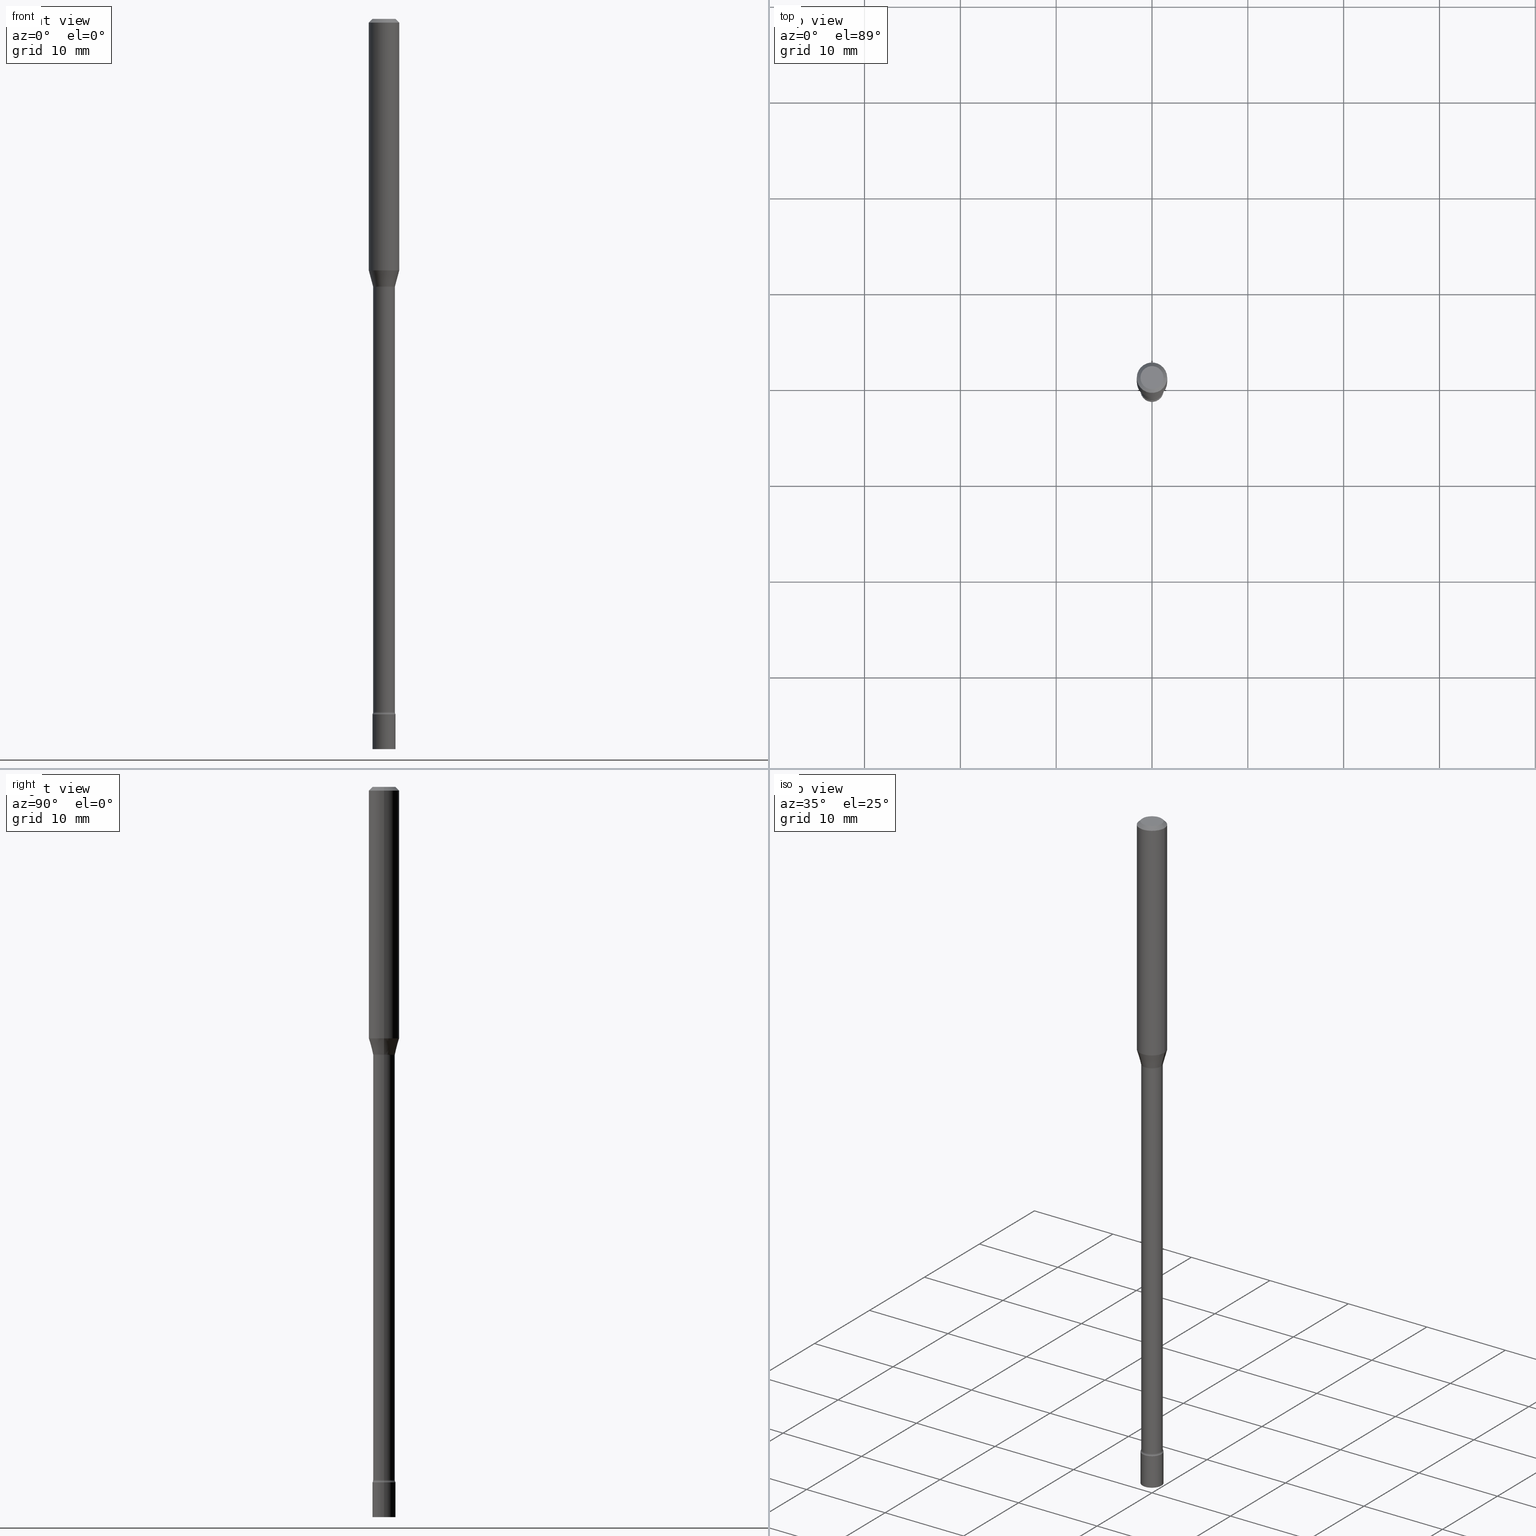
[diagram: canonical four-view strip — front | top / right | iso, engineering-drawing reading convention]
A machine part, canonical four-view strip (front | top / right | iso — engineering-drawing reading convention). The complete STEP part file that produces these views, byte-faithful:
ISO-10303-21;
HEADER;
FILE_DESCRIPTION (( 'STEP AP203' ),
    '1' );
FILE_NAME ('09751.STEP',
    '2024-03-09T01:39:05',
    ( '' ),
    ( '' ),
    'SwSTEP 2.0',
    'SolidWorks 2023',
    '' );
FILE_SCHEMA (( 'CONFIG_CONTROL_DESIGN' ));
ENDSEC;

DATA;
#1 = DIRECTION ( 'NONE',  ( -2.445468806185136597E-29, 3.491481338843145583E-15, 1.000000000000000000 ) ) ;
#2 = ORIENTED_EDGE ( 'NONE', *, *, #406, .F. ) ;
#3 = PRODUCT_DEFINITION_FORMATION_WITH_SPECIFIED_SOURCE ( 'ANY', '', #364, .NOT_KNOWN. ) ;
#4 = LOCAL_TIME ( 20, 39, 5.000000000000000000, #268 ) ;
#5 = ADVANCED_FACE ( 'NONE', ( #420 ), #55, .F. ) ;
#6 = ORIENTED_EDGE ( 'NONE', *, *, #444, .F. ) ;
#7 = ORIENTED_EDGE ( 'NONE', *, *, #436, .F. ) ;
#8 = ADVANCED_FACE ( 'NONE', ( #46 ), #252, .T. ) ;
#9 = FACE_OUTER_BOUND ( 'NONE', #316, .T. ) ;
#10 = CC_DESIGN_APPROVAL ( #170, ( #362 ) ) ;
#11 = EDGE_CURVE ( 'NONE', #317, #144, #256, .T. ) ;
#12 = DIRECTION ( 'NONE',  ( 1.000000000000000000, -6.982962677686262766E-15, 0.000000000000000000 ) ) ;
#13 = CC_DESIGN_APPROVAL ( #213, ( #361 ) ) ;
#14 = ORIENTED_EDGE ( 'NONE', *, *, #421, .F. ) ;
#15 = CARTESIAN_POINT ( 'NONE',  ( 2.694844967945245742E-29, -3.847524406305537825E-15, -1.101974787463811056 ) ) ;
#16 = ORIENTED_EDGE ( 'NONE', *, *, #332, .T. ) ;
#17 = CARTESIAN_POINT ( 'NONE',  ( 0.04516111260566398056, -4.149327842121987234E-15, -1.098092501787273356 ) ) ;
#18 = CYLINDRICAL_SURFACE ( 'NONE', #336, 0.04465000000000009933 ) ;
#19 = CARTESIAN_POINT ( 'NONE',  ( 2.527105629884462696E-29, -3.608037087085655823E-15, -1.033382893084895837 ) ) ;
#20 = AXIS2_PLACEMENT_3D ( 'NONE', #424, #414, #304 ) ;
#21 = ORIENTED_EDGE ( 'NONE', *, *, #356, .F. ) ;
#22 = EDGE_CURVE ( 'NONE', #123, #454, #112, .T. ) ;
#23 = DIRECTION ( 'NONE',  ( 1.000000000000000000, -6.982962677686267499E-15, 4.876681293081646444E-29 ) ) ;
#24 = EDGE_LOOP ( 'NONE', ( #277, #121 ) ) ;
#25 = CC_DESIGN_DATE_AND_TIME_ASSIGNMENT ( #389, #313, ( #362 ) ) ;
#26 = CARTESIAN_POINT ( 'NONE',  ( 6.965192939722619373E-29, -9.944449550522084107E-15, -2.848203551853162985 ) ) ;
#27 = CARTESIAN_POINT ( 'NONE',  ( 0.06250000000000000000, -4.364351673553916694E-16, 3.047610484872459871E-30 ) ) ;
#28 = AXIS2_PLACEMENT_3D ( 'NONE', #339, #507, #52 ) ;
#29 = CARTESIAN_POINT ( 'NONE',  ( 3.668203209277712094E-31, -5.237222008264728876E-17, -0.01500000000000003067 ) ) ;
#30 = DIRECTION ( 'NONE',  ( -1.000000000000000000, 6.982962677686266711E-15, 0.000000000000000000 ) ) ;
#31 = DIRECTION ( 'NONE',  ( 0.000000000000000000, 0.000000000000000000, 1.000000000000000000 ) ) ;
#32 = CARTESIAN_POINT ( 'NONE',  ( 3.316907271900976096E-16, 0.04749999999999999362, -1.803023190589839165E-16 ) ) ;
#33 = PERSON_AND_ORGANIZATION ( #164, #385 ) ;
#34 = AXIS2_PLACEMENT_3D ( 'NONE', #50, #172, #167 ) ;
#35 = DIRECTION ( 'NONE',  ( 1.000000000000000000, -6.982962677686268288E-15, 0.000000000000000000 ) ) ;
#36 = ORIENTED_EDGE ( 'NONE', *, *, #238, .T. ) ;
#37 = PERSON_AND_ORGANIZATION_ROLE ( 'creator' ) ;
#38 = ORIENTED_EDGE ( 'NONE', *, *, #421, .T. ) ;
#39 = AXIS2_PLACEMENT_3D ( 'NONE', #44, #338, #215 ) ;
#40 = CIRCLE ( 'NONE', #188, 0.04749999999999999362 ) ;
#41 = PERSON_AND_ORGANIZATION_ROLE ( 'design_supplier' ) ;
#42 = CC_DESIGN_PERSON_AND_ORGANIZATION_ASSIGNMENT ( #488, #37, ( #3 ) ) ;
#43 = DATE_AND_TIME ( #407, #102 ) ;
#44 = CARTESIAN_POINT ( 'NONE',  ( 6.986704379270935831E-29, -9.975162185074867400E-15, -2.857000000000000206 ) ) ;
#45 = DIRECTION ( 'NONE',  ( 1.000000000000000000, -6.982962677686267499E-15, 4.876176775795935793E-29 ) ) ;
#46 = FACE_OUTER_BOUND ( 'NONE', #97, .T. ) ;
#47 = DIRECTION ( 'NONE',  ( -2.445468806185136877E-29, 3.491481338843145188E-15, 1.000000000000000000 ) ) ;
#48 = VERTEX_POINT ( 'NONE', #462 ) ;
#49 = VECTOR ( 'NONE', #148, 39.37007874015748143 ) ;
#50 = CARTESIAN_POINT ( 'NONE',  ( 6.986704379270935831E-29, -9.975162185074867400E-15, -2.857000000000000206 ) ) ;
#51 = LOCAL_TIME ( 20, 39, 5.000000000000000000, #239 ) ;
#52 = DIRECTION ( 'NONE',  ( 1.000000000000000000, -6.982962677686268288E-15, 4.883557194083113462E-29 ) ) ;
#53 = VERTEX_POINT ( 'NONE', #248 ) ;
#54 = EDGE_CURVE ( 'NONE', #487, #382, #502, .T. ) ;
#55 = PLANE ( 'NONE',  #98 ) ;
#56 = ORIENTED_EDGE ( 'NONE', *, *, #251, .F. ) ;
#57 = DIRECTION ( 'NONE',  ( -1.000000000000000000, 7.105427357600993970E-15, 0.000000000000000000 ) ) ;
#58 = PRODUCT_DEFINITION_SHAPE ( 'NONE', 'NONE',  #362 ) ;
#59 = ORIENTED_EDGE ( 'NONE', *, *, #54, .F. ) ;
#60 = VECTOR ( 'NONE', #514, 39.37007874015748143 ) ;
#61 = CARTESIAN_POINT ( 'NONE',  ( -0.04516111260566398056, -3.338514175270729101E-15, -1.098092501787273356 ) ) ;
#62 = LINE ( 'NONE', #131, #150 ) ;
#63 = CIRCLE ( 'NONE', #441, 0.04749999999999999362 ) ;
#64 = LINE ( 'NONE', #476, #515 ) ;
#65 = EDGE_CURVE ( 'NONE', #321, #216, #311, .T. ) ;
#66 = DIRECTION ( 'NONE',  ( 1.000000000000000000, -6.982962677686249356E-15, 0.000000000000000000 ) ) ;
#67 = APPROVAL_STATUS ( 'not_yet_approved' ) ;
#68 = DIRECTION ( 'NONE',  ( 1.000000000000000000, -6.982962677686265922E-15, 4.876176775795935793E-29 ) ) ;
#69 = CIRCLE ( 'NONE', #288, 0.04465000000000018954 ) ;
#70 = AXIS2_PLACEMENT_3D ( 'NONE', #115, #355, #72 ) ;
#71 = DIRECTION ( 'NONE',  ( -1.000000000000000000, 6.982962677686266711E-15, 0.000000000000000000 ) ) ;
#72 = DIRECTION ( 'NONE',  ( 1.000000000000000000, -6.982962677686266711E-15, 4.876176775795935793E-29 ) ) ;
#73 = DIRECTION ( 'NONE',  ( -2.445468806185136597E-29, 3.491481338843145583E-15, 1.000000000000000000 ) ) ;
#74 = AXIS2_PLACEMENT_3D ( 'NONE', #249, #409, #45 ) ;
#75 = CC_DESIGN_DATE_AND_TIME_ASSIGNMENT ( #43, #278, ( #361 ) ) ;
#76 = APPROVAL_ROLE ( '' ) ;
#77 = EDGE_LOOP ( 'NONE', ( #419, #396 ) ) ;
#78 = ORIENTED_EDGE ( 'NONE', *, *, #332, .F. ) ;
#79 = ORIENTED_EDGE ( 'NONE', *, *, #259, .T. ) ;
#80 = AXIS2_PLACEMENT_3D ( 'NONE', #417, #495, #86 ) ;
#81 = VECTOR ( 'NONE', #404, 39.37007874015748143 ) ;
#82 = CC_DESIGN_SECURITY_CLASSIFICATION ( #361, ( #3 ) ) ;
#83 = DIRECTION ( 'NONE',  ( 1.000000000000000000, -6.982962677686265922E-15, 4.876176775795935793E-29 ) ) ;
#84 = CYLINDRICAL_SURFACE ( 'NONE', #74, 0.04749999999999999362 ) ;
#85 = ADVANCED_FACE ( 'NONE', ( #127 ), #18, .T. ) ;
#86 = DIRECTION ( 'NONE',  ( 1.000000000000000000, -6.982962677686268288E-15, 4.883557194083113462E-29 ) ) ;
#87 = ORIENTED_EDGE ( 'NONE', *, *, #439, .F. ) ;
#88 = DIRECTION ( 'NONE',  ( 1.000000000000000000, -6.982962677686268288E-15, 0.000000000000000000 ) ) ;
#89 = ORIENTED_EDGE ( 'NONE', *, *, #158, .F. ) ;
#90 = CIRCLE ( 'NONE', #325, 0.06250000000000000000 ) ;
#91 = CARTESIAN_POINT ( 'NONE',  ( 2.527105629884462696E-29, -3.608037087085655823E-15, -1.033382893084895837 ) ) ;
#92 = ORIENTED_EDGE ( 'NONE', *, *, #254, .T. ) ;
#93 = EDGE_CURVE ( 'NONE', #53, #317, #479, .T. ) ;
#94 = CYLINDRICAL_SURFACE ( 'NONE', #447, 0.04749999999999999362 ) ;
#95 = CARTESIAN_POINT ( 'NONE',  ( 6.965192939722619373E-29, -9.944449550522084107E-15, -2.848203551853162985 ) ) ;
#96 = CARTESIAN_POINT ( 'NONE',  ( 0.04749999999999999362, -3.316907271900976589E-16, 2.316183968503069081E-30 ) ) ;
#97 = EDGE_LOOP ( 'NONE', ( #333, #253, #483, #7 ) ) ;
#98 = AXIS2_PLACEMENT_3D ( 'NONE', #449, #136, #83 ) ;
#99 = FACE_OUTER_BOUND ( 'NONE', #402, .T. ) ;
#100 = DIRECTION ( 'NONE',  ( -2.445468806185136597E-29, 3.491481338843145583E-15, 1.000000000000000000 ) ) ;
#101 = AXIS2_PLACEMENT_3D ( 'NONE', #295, #418, #220 ) ;
#102 = LOCAL_TIME ( 20, 39, 5.000000000000000000, #276 ) ;
#103 = CARTESIAN_POINT ( 'NONE',  ( 3.316907271901709243E-16, 0.04749999999998952283, -3.000000000000000444 ) ) ;
#104 = DIRECTION ( 'NONE',  ( 1.000000000000000000, -6.982962677686269077E-15, 0.000000000000000000 ) ) ;
#105 = PERSON_AND_ORGANIZATION ( #164, #385 ) ;
#106 = ADVANCED_FACE ( 'NONE', ( #9 ), #147, .F. ) ;
#107 = LINE ( 'NONE', #110, #236 ) ;
#108 =( NAMED_UNIT ( * ) PLANE_ANGLE_UNIT ( ) SI_UNIT ( $, .RADIAN. ) );
#109 = DESIGN_CONTEXT ( 'detailed design', #114, 'design' ) ;
#110 = CARTESIAN_POINT ( 'NONE',  ( -0.06250000000000000000, 3.840629472727443437E-16, -0.01500000000000003067 ) ) ;
#111 = CALENDAR_DATE ( 2024, 8, 3 ) ;
#112 = CIRCLE ( 'NONE', #34, 0.04749999999999999362 ) ;
#113 =( GEOMETRIC_REPRESENTATION_CONTEXT ( 3 ) GLOBAL_UNCERTAINTY_ASSIGNED_CONTEXT ( ( #366 ) ) GLOBAL_UNIT_ASSIGNED_CONTEXT ( ( #473, #108, #194 ) ) REPRESENTATION_CONTEXT ( 'NONE', 'WORKASPACE' ) );
#114 = APPLICATION_CONTEXT ( 'configuration controlled 3d designs of mechanical parts and assemblies' ) ;
#115 = CARTESIAN_POINT ( 'NONE',  ( 0.000000000000000000, 0.000000000000000000, 0.000000000000000000 ) ) ;
#116 = CC_DESIGN_PERSON_AND_ORGANIZATION_ASSIGNMENT ( #509, #435, ( #362 ) ) ;
#117 = EDGE_CURVE ( 'NONE', #216, #48, #440, .T. ) ;
#118 = ORIENTED_EDGE ( 'NONE', *, *, #158, .T. ) ;
#119 = EDGE_LOOP ( 'NONE', ( #174, #163, #171, #261 ) ) ;
#120 = ADVANCED_FACE ( 'NONE', ( #323 ), #94, .T. ) ;
#121 = ORIENTED_EDGE ( 'NONE', *, *, #439, .T. ) ;
#122 = SECURITY_CLASSIFICATION_LEVEL ( 'unclassified' ) ;
#123 = VERTEX_POINT ( 'NONE', #326 ) ;
#124 = FACE_OUTER_BOUND ( 'NONE', #133, .T. ) ;
#125 = CONICAL_SURFACE ( 'NONE', #425, 0.06250000000000000000, 0.7853981633974483900 ) ;
#126 = AXIS2_PLACEMENT_3D ( 'NONE', #506, #227, #145 ) ;
#127 = FACE_OUTER_BOUND ( 'NONE', #283, .T. ) ;
#128 = LINE ( 'NONE', #96, #289 ) ;
#129 = ORIENTED_EDGE ( 'NONE', *, *, #189, .T. ) ;
#130 = DIRECTION ( 'NONE',  ( -2.445468806185136597E-29, 3.491481338843145583E-15, 1.000000000000000000 ) ) ;
#131 = CARTESIAN_POINT ( 'NONE',  ( 0.04465000000000009933, -3.117892835586925182E-16, 2.177212930392890079E-30 ) ) ;
#132 = PRODUCT_RELATED_PRODUCT_CATEGORY ( 'detail', '', ( #364 ) ) ;
#133 = EDGE_LOOP ( 'NONE', ( #242, #520, #250, #197 ) ) ;
#134 = EDGE_CURVE ( 'NONE', #214, #321, #510, .T. ) ;
#135 = DIMENSIONAL_EXPONENTS ( 1.000000000000000000, 0.000000000000000000, 0.000000000000000000, 0.000000000000000000, 0.000000000000000000, 0.000000000000000000, 0.000000000000000000 ) ;
#136 = DIRECTION ( 'NONE',  ( -2.438088387897960049E-29, 3.491481338843145188E-15, 1.000000000000000000 ) ) ;
#137 = DIRECTION ( 'NONE',  ( 1.000000000000000000, -6.982962677686261977E-15, 0.000000000000000000 ) ) ;
#138 = ORIENTED_EDGE ( 'NONE', *, *, #134, .T. ) ;
#139 = AXIS2_PLACEMENT_3D ( 'NONE', #19, #292, #466 ) ;
#140 = DIRECTION ( 'NONE',  ( -2.445468806185136877E-29, 3.491481338843145188E-15, 1.000000000000000000 ) ) ;
#141 = FACE_OUTER_BOUND ( 'NONE', #246, .T. ) ;
#142 = ORIENTED_EDGE ( 'NONE', *, *, #356, .T. ) ;
#143 = CARTESIAN_POINT ( 'NONE',  ( -0.04465000000000000219, -6.578729646896923703E-15, -1.101974787463811056 ) ) ;
#144 = VERTEX_POINT ( 'NONE', #211 ) ;
#145 = DIRECTION ( 'NONE',  ( 1.000000000000000000, -6.982962677686261189E-15, 4.883557194083110659E-29 ) ) ;
#146 = DIRECTION ( 'NONE',  ( -2.445468806185136597E-29, 3.491481338843145583E-15, 1.000000000000000000 ) ) ;
#147 = TOROIDAL_SURFACE ( 'NONE', #80, 0.05965000000000000163, 0.01499999999999999771 ) ;
#148 = DIRECTION ( 'NONE',  ( -0.2588190451025211281, 5.211531920934548675E-15, 0.9659258262890682012 ) ) ;
#149 = DIRECTION ( 'NONE',  ( 1.000000000000000000, -6.982962677686261189E-15, 4.883557194083110659E-29 ) ) ;
#150 = VECTOR ( 'NONE', #47, 39.37007874015748143 ) ;
#151 = FACE_OUTER_BOUND ( 'NONE', #286, .T. ) ;
#152 = CARTESIAN_POINT ( 'NONE',  ( 2.685350959426573559E-29, -3.833969478313848817E-15, -1.098092501787273356 ) ) ;
#153 = DIRECTION ( 'NONE',  ( -1.000000000000000000, 7.105427357601001859E-15, 0.000000000000000000 ) ) ;
#154 = PERSON_AND_ORGANIZATION ( #164, #385 ) ;
#155 = DIRECTION ( 'NONE',  ( 1.000000000000000000, 0.000000000000000000, 0.000000000000000000 ) ) ;
#156 = VECTOR ( 'NONE', #176, 39.37007874015748143 ) ;
#157 = AXIS2_PLACEMENT_3D ( 'NONE', #264, #512, #423 ) ;
#158 = EDGE_CURVE ( 'NONE', #214, #53, #373, .T. ) ;
#159 = DIRECTION ( 'NONE',  ( -2.445468806185136597E-29, 3.491481338843145583E-15, 1.000000000000000000 ) ) ;
#160 = VERTEX_POINT ( 'NONE', #334 ) ;
#161 = CARTESIAN_POINT ( 'NONE',  ( 3.668203209277712094E-31, -5.237222008264728876E-17, -0.01500000000000003067 ) ) ;
#162 = AXIS2_PLACEMENT_3D ( 'NONE', #152, #187, #513 ) ;
#163 = ORIENTED_EDGE ( 'NONE', *, *, #444, .T. ) ;
#164 = PERSON ( 'UNSPECIFIED', 'UNSPECIFIED', 'UNSPECIFIED', ('UNSPECIFIED'), ('UNSPECIFIED'), ('UNSPECIFIED') ) ;
#165 = VERTEX_POINT ( 'NONE', #501 ) ;
#166 = DIRECTION ( 'NONE',  ( 2.438088387897960049E-29, -3.491481338843145188E-15, -1.000000000000000000 ) ) ;
#167 = DIRECTION ( 'NONE',  ( 1.000000000000000000, -6.982962677686261977E-15, 0.000000000000000000 ) ) ;
#168 = AXIS2_PLACEMENT_3D ( 'NONE', #95, #269, #66 ) ;
#169 = ORIENTED_EDGE ( 'NONE', *, *, #474, .T. ) ;
#170 = APPROVAL ( #518, 'UNSPECIFIED' ) ;
#171 = ORIENTED_EDGE ( 'NONE', *, *, #315, .T. ) ;
#172 = DIRECTION ( 'NONE',  ( -2.445468806185136597E-29, 3.491481338843145583E-15, 1.000000000000000000 ) ) ;
#173 = PLANE ( 'NONE',  #217 ) ;
#174 = ORIENTED_EDGE ( 'NONE', *, *, #11, .F. ) ;
#175 = DATE_AND_TIME ( #398, #51 ) ;
#176 = DIRECTION ( 'NONE',  ( 0.2588190451025211281, 1.565188264969623940E-15, 0.9659258262890682012 ) ) ;
#177 = CARTESIAN_POINT ( 'NONE',  ( 7.336406418555409790E-29, -1.047444401652943635E-14, -3.000000000000000444 ) ) ;
#178 = EDGE_CURVE ( 'NONE', #160, #123, #324, .T. ) ;
#179 = ORIENTED_EDGE ( 'NONE', *, *, #117, .T. ) ;
#180 = DIRECTION ( 'NONE',  ( -2.445468806185136877E-29, 3.491481338843145188E-15, 1.000000000000000000 ) ) ;
#181 = LINE ( 'NONE', #192, #49 ) ;
#182 = ORIENTED_EDGE ( 'NONE', *, *, #474, .F. ) ;
#183 = EDGE_CURVE ( 'NONE', #281, #208, #64, .T. ) ;
#184 = DIRECTION ( 'NONE',  ( 2.445468806185136597E-29, -3.491481338843145583E-15, -1.000000000000000000 ) ) ;
#185 = APPROVAL_ROLE ( '' ) ;
#186 = CARTESIAN_POINT ( 'NONE',  ( -0.04465000000000009933, 3.172573315168854388E-16, -2.196304517798820251E-30 ) ) ;
#187 = DIRECTION ( 'NONE',  ( -2.445468806185136597E-29, 3.491481338843145583E-15, 1.000000000000000000 ) ) ;
#188 = AXIS2_PLACEMENT_3D ( 'NONE', #209, #371, #137 ) ;
#189 = EDGE_CURVE ( 'NONE', #160, #340, #69, .T. ) ;
#190 = DIRECTION ( 'NONE',  ( -0.7071067811865475727, 2.468850131082257455E-15, -0.7071067811865474617 ) ) ;
#191 = CARTESIAN_POINT ( 'NONE',  ( 2.685350959426573559E-29, -3.833969478313848817E-15, -1.098092501787273356 ) ) ;
#192 = CARTESIAN_POINT ( 'NONE',  ( -0.04516111260566398056, -3.513080473305864602E-15, -1.098092501787273356 ) ) ;
#193 = CARTESIAN_POINT ( 'NONE',  ( 6.965192939722619373E-29, -9.944449550522084107E-15, -2.848203551853162985 ) ) ;
#194 =( NAMED_UNIT ( * ) SI_UNIT ( $, .STERADIAN. ) SOLID_ANGLE_UNIT ( ) );
#195 = CIRCLE ( 'NONE', #490, 0.04749999999999999362 ) ;
#196 = CONICAL_SURFACE ( 'NONE', #162, 0.04516111260566398056, 0.2617993877991497964 ) ;
#197 = ORIENTED_EDGE ( 'NONE', *, *, #315, .F. ) ;
#198 = APPROVAL_STATUS ( 'not_yet_approved' ) ;
#199 = CLOSED_SHELL ( 'NONE', ( #120, #271, #397, #369 ) ) ;
#200 = AXIS2_PLACEMENT_3D ( 'NONE', #29, #434, #71 ) ;
#201 = EDGE_LOOP ( 'NONE', ( #293, #500, #118, #6 ) ) ;
#202 = ORIENTED_EDGE ( 'NONE', *, *, #134, .F. ) ;
#203 = EDGE_CURVE ( 'NONE', #160, #216, #307, .T. ) ;
#204 = DIRECTION ( 'NONE',  ( 1.000000000000000000, -6.982962677686266711E-15, 4.876176775795935793E-29 ) ) ;
#205 = CARTESIAN_POINT ( 'NONE',  ( 0.04749999999999999362, -1.080613474371953465E-14, -3.000000000000000444 ) ) ;
#206 = AXIS2_PLACEMENT_3D ( 'NONE', #375, #260, #57 ) ;
#207 = EDGE_LOOP ( 'NONE', ( #329, #16, #59, #2 ) ) ;
#208 = VERTEX_POINT ( 'NONE', #231 ) ;
#209 = CARTESIAN_POINT ( 'NONE',  ( 6.986704379270935831E-29, -9.975162185074867400E-15, -2.857000000000000206 ) ) ;
#210 = ORIENTED_EDGE ( 'NONE', *, *, #346, .T. ) ;
#211 = CARTESIAN_POINT ( 'NONE',  ( -0.06250000000000000000, -1.386115443734088835E-15, -0.01500000000000003067 ) ) ;
#212 = FACE_OUTER_BOUND ( 'NONE', #494, .T. ) ;
#213 = APPROVAL ( #198, 'UNSPECIFIED' ) ;
#214 = VERTEX_POINT ( 'NONE', #383 ) ;
#215 = DIRECTION ( 'NONE',  ( 1.000000000000000000, -6.982962677686261977E-15, 0.000000000000000000 ) ) ;
#216 = VERTEX_POINT ( 'NONE', #143 ) ;
#217 = AXIS2_PLACEMENT_3D ( 'NONE', #103, #166, #320 ) ;
#218 = APPLICATION_CONTEXT ( 'configuration controlled 3d designs of mechanical parts and assemblies' ) ;
#219 = APPROVAL_PERSON_ORGANIZATION ( #442, #213, #76 ) ;
#220 = DIRECTION ( 'NONE',  ( 1.000000000000000000, -6.982962677686270655E-15, 0.000000000000000000 ) ) ;
#221 = ORIENTED_EDGE ( 'NONE', *, *, #22, .F. ) ;
#222 = CARTESIAN_POINT ( 'NONE',  ( -0.05965000000000016817, -9.520610808641182904E-15, -2.848203551853162985 ) ) ;
#223 = CC_DESIGN_PERSON_AND_ORGANIZATION_ASSIGNMENT ( #154, #235, ( #364 ) ) ;
#224 = FACE_OUTER_BOUND ( 'NONE', #201, .T. ) ;
#225 = APPLICATION_PROTOCOL_DEFINITION ( 'international standard', 'config_control_design', 1994, #114 ) ;
#226 = CLOSED_SHELL ( 'NONE', ( #410, #8, #492, #327, #390, #496, #285, #519, #233, #341, #5, #284, #85, #106 ) ) ;
#227 = DIRECTION ( 'NONE',  ( -2.445468806185136597E-29, 3.491481338843145583E-15, 1.000000000000000000 ) ) ;
#228 = MECHANICAL_CONTEXT ( 'NONE', #218, 'mechanical' ) ;
#229 = LOCAL_TIME ( 20, 39, 5.000000000000000000, #345 ) ;
#230 = APPROVAL_PERSON_ORGANIZATION ( #105, #280, #482 ) ;
#231 = CARTESIAN_POINT ( 'NONE',  ( 0.06250000000000000000, -4.888073874380389458E-16, -0.01500000000000003067 ) ) ;
#232 = CARTESIAN_POINT ( 'NONE',  ( 0.000000000000000000, 0.000000000000000000, 0.000000000000000000 ) ) ;
#233 = ADVANCED_FACE ( 'NONE', ( #388 ), #125, .T. ) ;
#234 = FACE_OUTER_BOUND ( 'NONE', #24, .T. ) ;
#235 = PERSON_AND_ORGANIZATION_ROLE ( 'design_owner' ) ;
#236 = VECTOR ( 'NONE', #190, 39.37007874015748143 ) ;
#237 = EDGE_LOOP ( 'NONE', ( #422, #457, #179, #182 ) ) ;
#238 = EDGE_CURVE ( 'NONE', #144, #208, #353, .T. ) ;
#239 = COORDINATED_UNIVERSAL_TIME_OFFSET ( 5, 0, .BEHIND. ) ;
#240 = ORIENTED_EDGE ( 'NONE', *, *, #178, .T. ) ;
#241 = CYLINDRICAL_SURFACE ( 'NONE', #360, 0.06250000000000000000 ) ;
#242 = ORIENTED_EDGE ( 'NONE', *, *, #93, .T. ) ;
#243 = ORIENTED_EDGE ( 'NONE', *, *, #183, .F. ) ;
#244 = CONICAL_SURFACE ( 'NONE', #200, 0.06250000000000000000, 0.7853981633974483900 ) ;
#245 = CIRCLE ( 'NONE', #168, 0.04465000000000018954 ) ;
#246 = EDGE_LOOP ( 'NONE', ( #138, #79, #379, #89 ) ) ;
#247 = PERSON_AND_ORGANIZATION_ROLE ( 'classification_officer' ) ;
#248 = CARTESIAN_POINT ( 'NONE',  ( 0.06250000000000000000, -4.044472254441047492E-15, -1.033382893084895837 ) ) ;
#249 = CARTESIAN_POINT ( 'NONE',  ( 0.000000000000000000, 0.000000000000000000, 0.000000000000000000 ) ) ;
#250 = ORIENTED_EDGE ( 'NONE', *, *, #394, .F. ) ;
#251 = EDGE_CURVE ( 'NONE', #165, #281, #195, .T. ) ;
#252 = CYLINDRICAL_SURFACE ( 'NONE', #297, 0.04465000000000009933 ) ;
#253 = ORIENTED_EDGE ( 'NONE', *, *, #203, .T. ) ;
#254 = EDGE_CURVE ( 'NONE', #165, #144, #107, .T. ) ;
#255 = SHAPE_DEFINITION_REPRESENTATION ( #58, #393 ) ;
#256 = LINE ( 'NONE', #413, #367 ) ;
#257 = CARTESIAN_POINT ( 'NONE',  ( 0.05965000000000016817, -1.036098327424607142E-14, -2.848203551853162985 ) ) ;
#258 = TOROIDAL_SURFACE ( 'NONE', #28, 0.05965000000000000163, 0.01499999999999999771 ) ;
#259 = EDGE_CURVE ( 'NONE', #321, #317, #181, .T. ) ;
#260 = DIRECTION ( 'NONE',  ( 7.105427357601001859E-15, 1.000000000000000000, -3.491481338843145583E-15 ) ) ;
#261 = ORIENTED_EDGE ( 'NONE', *, *, #238, .F. ) ;
#262 = APPROVAL_DATE_TIME ( #175, #213 ) ;
#263 = DIRECTION ( 'NONE',  ( -2.445468806185136597E-29, 3.491481338843145583E-15, 1.000000000000000000 ) ) ;
#264 = CARTESIAN_POINT ( 'NONE',  ( 7.336406418555409790E-29, -1.047444401652943635E-14, -3.000000000000000444 ) ) ;
#265 = CARTESIAN_POINT ( 'NONE',  ( 6.986704379270935831E-29, -9.975162185074867400E-15, -2.857000000000000206 ) ) ;
#266 = AXIS2_PLACEMENT_3D ( 'NONE', #257, #331, #376 ) ;
#267 = FACE_OUTER_BOUND ( 'NONE', #77, .T. ) ;
#268 = COORDINATED_UNIVERSAL_TIME_OFFSET ( 5, 0, .BEHIND. ) ;
#269 = DIRECTION ( 'NONE',  ( -2.445468806185136597E-29, 3.491481338843145583E-15, 1.000000000000000000 ) ) ;
#270 = CALENDAR_DATE ( 2024, 8, 3 ) ;
#271 = ADVANCED_FACE ( 'NONE', ( #267 ), #380, .T. ) ;
#272 = CARTESIAN_POINT ( 'NONE',  ( 6.986704379270935831E-29, -9.975162185074867400E-15, -2.857000000000000206 ) ) ;
#273 = CARTESIAN_POINT ( 'NONE',  ( -0.04749999999999999362, -9.887295301316104383E-15, -3.000000000000000444 ) ) ;
#274 = CIRCLE ( 'NONE', #157, 0.04749999999999999362 ) ;
#275 = APPLICATION_PROTOCOL_DEFINITION ( 'international standard', 'config_control_design', 1994, #218 ) ;
#276 = COORDINATED_UNIVERSAL_TIME_OFFSET ( 5, 0, .BEHIND. ) ;
#277 = ORIENTED_EDGE ( 'NONE', *, *, #251, .T. ) ;
#278 = DATE_TIME_ROLE ( 'classification_date' ) ;
#279 = AXIS2_PLACEMENT_3D ( 'NONE', #222, #342, #153 ) ;
#280 = APPROVAL ( #67, 'UNSPECIFIED' ) ;
#281 = VERTEX_POINT ( 'NONE', #469 ) ;
#282 = PERSON_AND_ORGANIZATION ( #164, #385 ) ;
#283 = EDGE_LOOP ( 'NONE', ( #368, #129, #363, #461 ) ) ;
#284 = ADVANCED_FACE ( 'NONE', ( #99 ), #415, .F. ) ;
#285 = ADVANCED_FACE ( 'NONE', ( #224 ), #433, .T. ) ;
#286 = EDGE_LOOP ( 'NONE', ( #87, #443, #456, #497 ) ) ;
#287 = CARTESIAN_POINT ( 'NONE',  ( 0.000000000000000000, 0.000000000000000000, 0.000000000000000000 ) ) ;
#288 = AXIS2_PLACEMENT_3D ( 'NONE', #26, #428, #429 ) ;
#289 = VECTOR ( 'NONE', #180, 39.37007874015748143 ) ;
#290 = DIRECTION ( 'NONE',  ( 1.000000000000000000, -6.982962677686267499E-15, 4.876176775795935793E-29 ) ) ;
#291 = DIRECTION ( 'NONE',  ( 1.000000000000000000, -6.982962677686266711E-15, 4.876176775795935793E-29 ) ) ;
#292 = DIRECTION ( 'NONE',  ( -2.445468806185136597E-29, 3.491481338843145583E-15, 1.000000000000000000 ) ) ;
#293 = ORIENTED_EDGE ( 'NONE', *, *, #259, .F. ) ;
#294 = DIRECTION ( 'NONE',  ( 1.000000000000000000, -6.982962677686269077E-15, 0.000000000000000000 ) ) ;
#295 = CARTESIAN_POINT ( 'NONE',  ( 0.05965000000000000163, -4.264058130029524354E-15, -1.101974787463811278 ) ) ;
#296 = MANIFOLD_SOLID_BREP ( 'Body-Move/Copy2[2]', #226 ) ;
#297 = AXIS2_PLACEMENT_3D ( 'NONE', #458, #263, #204 ) ;
#298 = ORIENTED_EDGE ( 'NONE', *, *, #65, .F. ) ;
#299 = CIRCLE ( 'NONE', #448, 0.04749999999999999362 ) ;
#300 = EDGE_CURVE ( 'NONE', #340, #160, #245, .T. ) ;
#301 = DIRECTION ( 'NONE',  ( -2.445468806185136597E-29, 3.491481338843145583E-15, 1.000000000000000000 ) ) ;
#302 = ORIENTED_EDGE ( 'NONE', *, *, #455, .T. ) ;
#303 = CARTESIAN_POINT ( 'NONE',  ( 3.668203209277712094E-31, -5.237222008264728876E-17, -0.01500000000000003067 ) ) ;
#304 = DIRECTION ( 'NONE',  ( 1.000000000000000000, -6.982962677686267499E-15, 4.876681293081646444E-29 ) ) ;
#305 = EDGE_CURVE ( 'NONE', #463, #319, #274, .T. ) ;
#306 = CIRCLE ( 'NONE', #266, 0.01499999999999997689 ) ;
#307 = LINE ( 'NONE', #186, #60 ) ;
#308 = CARTESIAN_POINT ( 'NONE',  ( 3.668203209277712094E-31, -5.237222008264728876E-17, -0.01500000000000003067 ) ) ;
#309 =( LENGTH_UNIT ( ) NAMED_UNIT ( * ) SI_UNIT ( $, .METRE. ) );
#310 = DIRECTION ( 'NONE',  ( -2.445468806185136597E-29, 3.491481338843145583E-15, 1.000000000000000000 ) ) ;
#311 = CIRCLE ( 'NONE', #206, 0.01499999999999999424 ) ;
#312 = DATE_AND_TIME ( #111, #460 ) ;
#313 = DATE_TIME_ROLE ( 'creation_date' ) ;
#314 = PERSON_AND_ORGANIZATION ( #164, #385 ) ;
#315 = EDGE_CURVE ( 'NONE', #53, #208, #384, .T. ) ;
#316 = EDGE_LOOP ( 'NONE', ( #298, #202, #169, #210 ) ) ;
#317 = VERTEX_POINT ( 'NONE', #349 ) ;
#318 = DIRECTION ( 'NONE',  ( 1.000000000000000000, -6.982962677686266711E-15, 0.000000000000000000 ) ) ;
#319 = VERTEX_POINT ( 'NONE', #273 ) ;
#320 = DIRECTION ( 'NONE',  ( -1.000000000000000000, 6.982962677686265922E-15, -4.876176775795935793E-29 ) ) ;
#321 = VERTEX_POINT ( 'NONE', #61 ) ;
#322 = APPROVAL_DATE_TIME ( #430, #280 ) ;
#323 = FACE_OUTER_BOUND ( 'NONE', #207, .T. ) ;
#324 = CIRCLE ( 'NONE', #279, 0.01499999999999997689 ) ;
#325 = AXIS2_PLACEMENT_3D ( 'NONE', #161, #1, #318 ) ;
#326 = CARTESIAN_POINT ( 'NONE',  ( -0.04749999999999997280, -9.637654385588820695E-15, -2.857000000000000206 ) ) ;
#327 = ADVANCED_FACE ( 'NONE', ( #151 ), #244, .T. ) ;
#328 = CARTESIAN_POINT ( 'NONE',  ( 2.694844967945245742E-29, -3.847524406305537825E-15, -1.101974787463811056 ) ) ;
#329 = ORIENTED_EDGE ( 'NONE', *, *, #305, .T. ) ;
#330 = CARTESIAN_POINT ( 'NONE',  ( 0.000000000000000000, 0.000000000000000000, 0.000000000000000000 ) ) ;
#331 = DIRECTION ( 'NONE',  ( -6.982962677686266711E-15, -1.000000000000000000, 3.491481338843145583E-15 ) ) ;
#332 = EDGE_CURVE ( 'NONE', #319, #382, #504, .T. ) ;
#333 = ORIENTED_EDGE ( 'NONE', *, *, #300, .T. ) ;
#334 = CARTESIAN_POINT ( 'NONE',  ( -0.04465000000000018954, -9.632423302297009755E-15, -2.848203551853162985 ) ) ;
#335 = DIRECTION ( 'NONE',  ( 1.000000000000000000, -6.982962677686261977E-15, 0.000000000000000000 ) ) ;
#336 = AXIS2_PLACEMENT_3D ( 'NONE', #370, #365, #291 ) ;
#337 = CIRCLE ( 'NONE', #491, 0.04516111260566398056 ) ;
#338 = DIRECTION ( 'NONE',  ( -2.445468806185136597E-29, 3.491481338843145583E-15, 1.000000000000000000 ) ) ;
#339 = CARTESIAN_POINT ( 'NONE',  ( 2.694844967945245742E-29, -3.847524406305538614E-15, -1.101974787463811278 ) ) ;
#340 = VERTEX_POINT ( 'NONE', #437 ) ;
#341 = ADVANCED_FACE ( 'NONE', ( #234 ), #391, .F. ) ;
#342 = DIRECTION ( 'NONE',  ( 7.105427357601001859E-15, 1.000000000000000000, -3.491481338843145583E-15 ) ) ;
#343 = DIRECTION ( 'NONE',  ( 1.000000000000000000, -6.982962677686261977E-15, 0.000000000000000000 ) ) ;
#344 = DIRECTION ( 'NONE',  ( -2.445468806185136597E-29, 3.491481338843145583E-15, 1.000000000000000000 ) ) ;
#345 = COORDINATED_UNIVERSAL_TIME_OFFSET ( 5, 0, .BEHIND. ) ;
#346 = EDGE_CURVE ( 'NONE', #48, #216, #378, .T. ) ;
#347 = AXIS2_PLACEMENT_3D ( 'NONE', #272, #432, #68 ) ;
#348 = AXIS2_PLACEMENT_3D ( 'NONE', #232, #31, #155 ) ;
#349 = CARTESIAN_POINT ( 'NONE',  ( -0.06250000000000000000, -3.163947877235593601E-15, -1.033382893084895837 ) ) ;
#350 = LENGTH_MEASURE_WITH_UNIT ( LENGTH_MEASURE( 0.02539999999999999897 ), #309 );
#351 = DIRECTION ( 'NONE',  ( -2.445468806185136877E-29, 3.491481338843145188E-15, 1.000000000000000000 ) ) ;
#352 = CYLINDRICAL_SURFACE ( 'NONE', #70, 0.06250000000000000000 ) ;
#353 = CIRCLE ( 'NONE', #467, 0.06250000000000000000 ) ;
#354 = CIRCLE ( 'NONE', #101, 0.01499999999999999424 ) ;
#355 = DIRECTION ( 'NONE',  ( -2.445468806185136597E-29, 3.491481338843145583E-15, 1.000000000000000000 ) ) ;
#356 = EDGE_CURVE ( 'NONE', #319, #463, #299, .T. ) ;
#357 = FACE_OUTER_BOUND ( 'NONE', #427, .T. ) ;
#358 = ORIENTED_EDGE ( 'NONE', *, *, #406, .T. ) ;
#359 = DIRECTION ( 'NONE',  ( 1.000000000000000000, -6.982962677686266711E-15, 4.876176775795935793E-29 ) ) ;
#360 = AXIS2_PLACEMENT_3D ( 'NONE', #287, #400, #359 ) ;
#361 = SECURITY_CLASSIFICATION ( '', '', #122 ) ;
#362 = PRODUCT_DEFINITION ( 'UNKNOWN', '', #3, #109 ) ;
#363 = ORIENTED_EDGE ( 'NONE', *, *, #436, .T. ) ;
#364 = PRODUCT ( '09751', '09751', '', ( #228 ) ) ;
#365 = DIRECTION ( 'NONE',  ( -2.445468806185136597E-29, 3.491481338843145583E-15, 1.000000000000000000 ) ) ;
#366 = UNCERTAINTY_MEASURE_WITH_UNIT (LENGTH_MEASURE( 1.000000000000000082E-05 ), #473, 'distance_accuracy_value', 'NONE');
#367 = VECTOR ( 'NONE', #140, 39.37007874015748143 ) ;
#368 = ORIENTED_EDGE ( 'NONE', *, *, #203, .F. ) ;
#369 = ADVANCED_FACE ( 'NONE', ( #357 ), #173, .T. ) ;
#370 = CARTESIAN_POINT ( 'NONE',  ( 0.000000000000000000, 0.000000000000000000, 0.000000000000000000 ) ) ;
#371 = DIRECTION ( 'NONE',  ( -2.445468806185136597E-29, 3.491481338843145583E-15, 1.000000000000000000 ) ) ;
#372 = EDGE_LOOP ( 'NONE', ( #78, #142, #358, #505 ) ) ;
#373 = LINE ( 'NONE', #17, #156 ) ;
#374 = EDGE_LOOP ( 'NONE', ( #408, #221 ) ) ;
#375 = CARTESIAN_POINT ( 'NONE',  ( -0.05965000000000000163, -3.423685664424638595E-15, -1.101974787463811278 ) ) ;
#376 = DIRECTION ( 'NONE',  ( 1.000000000000000000, -6.982962677686279332E-15, 0.000000000000000000 ) ) ;
#377 = AXIS2_PLACEMENT_3D ( 'NONE', #498, #130, #294 ) ;
#378 = CIRCLE ( 'NONE', #511, 0.04465000000000000219 ) ;
#379 = ORIENTED_EDGE ( 'NONE', *, *, #93, .F. ) ;
#380 = PLANE ( 'NONE',  #347 ) ;
#381 = CARTESIAN_POINT ( 'NONE',  ( 0.04749999999999997280, -1.030685291226496570E-14, -2.857000000000000206 ) ) ;
#382 = VERTEX_POINT ( 'NONE', #489 ) ;
#383 = CARTESIAN_POINT ( 'NONE',  ( 0.04516111260566398056, -4.149327842121987234E-15, -1.098092501787273356 ) ) ;
#384 = LINE ( 'NONE', #27, #486 ) ;
#385 = ORGANIZATION ( 'UNSPECIFIED', 'UNSPECIFIED', '' ) ;
#386 = CARTESIAN_POINT ( 'NONE',  ( 2.685350959426573559E-29, -3.833969478313848817E-15, -1.098092501787273356 ) ) ;
#387 = DIRECTION ( 'NONE',  ( 1.000000000000000000, -6.982962677686269077E-15, 0.000000000000000000 ) ) ;
#388 = FACE_OUTER_BOUND ( 'NONE', #412, .T. ) ;
#389 = DATE_AND_TIME ( #470, #229 ) ;
#390 = ADVANCED_FACE ( 'NONE', ( #124 ), #241, .T. ) ;
#391 = PLANE ( 'NONE',  #405 ) ;
#392 = FACE_OUTER_BOUND ( 'NONE', #119, .T. ) ;
#393 = ADVANCED_BREP_SHAPE_REPRESENTATION ( '09751', ( #475, #296, #348 ), #113 ) ;
#394 = EDGE_CURVE ( 'NONE', #208, #144, #90, .T. ) ;
#395 = CIRCLE ( 'NONE', #20, 0.04749999999999999362 ) ;
#396 = ORIENTED_EDGE ( 'NONE', *, *, #471, .T. ) ;
#397 = ADVANCED_FACE ( 'NONE', ( #451 ), #84, .T. ) ;
#398 = CALENDAR_DATE ( 2024, 8, 3 ) ;
#399 = ORIENTED_EDGE ( 'NONE', *, *, #178, .F. ) ;
#400 = DIRECTION ( 'NONE',  ( -2.445468806185136597E-29, 3.491481338843145583E-15, 1.000000000000000000 ) ) ;
#401 = DIRECTION ( 'NONE',  ( -2.445468806185136597E-29, 3.491481338843145583E-15, 1.000000000000000000 ) ) ;
#402 = EDGE_LOOP ( 'NONE', ( #399, #445, #38, #302 ) ) ;
#403 = CARTESIAN_POINT ( 'NONE',  ( -0.04749999999999999362, 3.375077994860475429E-16, -2.336494167871079910E-30 ) ) ;
#404 = DIRECTION ( 'NONE',  ( -2.445468806185136877E-29, 3.491481338843145188E-15, 1.000000000000000000 ) ) ;
#405 = AXIS2_PLACEMENT_3D ( 'NONE', #32, #438, #484 ) ;
#406 = EDGE_CURVE ( 'NONE', #463, #487, #128, .T. ) ;
#407 = CALENDAR_DATE ( 2024, 8, 3 ) ;
#408 = ORIENTED_EDGE ( 'NONE', *, *, #455, .F. ) ;
#409 = DIRECTION ( 'NONE',  ( -2.445468806185136597E-29, 3.491481338843145583E-15, 1.000000000000000000 ) ) ;
#410 = ADVANCED_FACE ( 'NONE', ( #411 ), #258, .F. ) ;
#411 = FACE_OUTER_BOUND ( 'NONE', #237, .T. ) ;
#412 = EDGE_LOOP ( 'NONE', ( #243, #56, #92, #36 ) ) ;
#413 = CARTESIAN_POINT ( 'NONE',  ( -0.06250000000000000000, 4.440892098500626162E-16, -3.074334431409316114E-30 ) ) ;
#414 = DIRECTION ( 'NONE',  ( -2.445468806185136597E-29, 3.491481338843145583E-15, 1.000000000000000000 ) ) ;
#415 = TOROIDAL_SURFACE ( 'NONE', #126, 0.05965000000000016817, 0.01499999999999997689 ) ;
#416 = ORIENTED_EDGE ( 'NONE', *, *, #189, .F. ) ;
#417 = CARTESIAN_POINT ( 'NONE',  ( 2.694844967945245742E-29, -3.847524406305538614E-15, -1.101974787463811278 ) ) ;
#418 = DIRECTION ( 'NONE',  ( -6.982962677686266711E-15, -1.000000000000000000, 3.491481338843145583E-15 ) ) ;
#419 = ORIENTED_EDGE ( 'NONE', *, *, #54, .T. ) ;
#420 = FACE_OUTER_BOUND ( 'NONE', #374, .T. ) ;
#421 = EDGE_CURVE ( 'NONE', #340, #454, #306, .T. ) ;
#422 = ORIENTED_EDGE ( 'NONE', *, *, #517, .F. ) ;
#423 = DIRECTION ( 'NONE',  ( 1.000000000000000000, -6.982962677686261977E-15, 0.000000000000000000 ) ) ;
#424 = CARTESIAN_POINT ( 'NONE',  ( 7.070806723891919892E-46, -1.009523804376275404E-31, -2.891391092786900929E-17 ) ) ;
#425 = AXIS2_PLACEMENT_3D ( 'NONE', #303, #184, #30 ) ;
#426 = AXIS2_PLACEMENT_3D ( 'NONE', #193, #73, #149 ) ;
#427 = EDGE_LOOP ( 'NONE', ( #446, #21 ) ) ;
#428 = DIRECTION ( 'NONE',  ( -2.445468806185136597E-29, 3.491481338843145583E-15, 1.000000000000000000 ) ) ;
#429 = DIRECTION ( 'NONE',  ( 1.000000000000000000, -6.982962677686249356E-15, 0.000000000000000000 ) ) ;
#430 = DATE_AND_TIME ( #270, #4 ) ;
#431 = CC_DESIGN_PERSON_AND_ORGANIZATION_ASSIGNMENT ( #282, #41, ( #3 ) ) ;
#432 = DIRECTION ( 'NONE',  ( -2.438088387897960049E-29, 3.491481338843145188E-15, 1.000000000000000000 ) ) ;
#433 = CONICAL_SURFACE ( 'NONE', #503, 0.04516111260566398056, 0.2617993877991497964 ) ;
#434 = DIRECTION ( 'NONE',  ( 2.445468806185136597E-29, -3.491481338843145583E-15, -1.000000000000000000 ) ) ;
#435 = PERSON_AND_ORGANIZATION_ROLE ( 'creator' ) ;
#436 = EDGE_CURVE ( 'NONE', #340, #48, #62, .T. ) ;
#437 = CARTESIAN_POINT ( 'NONE',  ( 0.04465000000000018954, -1.025623883408077648E-14, -2.848203551853162985 ) ) ;
#438 = DIRECTION ( 'NONE',  ( 2.438088387897960049E-29, -3.491481338843145188E-15, -1.000000000000000000 ) ) ;
#439 = EDGE_CURVE ( 'NONE', #281, #165, #395, .T. ) ;
#440 = CIRCLE ( 'NONE', #485, 0.04465000000000000219 ) ;
#441 = AXIS2_PLACEMENT_3D ( 'NONE', #265, #100, #335 ) ;
#442 = PERSON_AND_ORGANIZATION ( #164, #385 ) ;
#443 = ORIENTED_EDGE ( 'NONE', *, *, #183, .T. ) ;
#444 = EDGE_CURVE ( 'NONE', #317, #53, #516, .T. ) ;
#445 = ORIENTED_EDGE ( 'NONE', *, *, #300, .F. ) ;
#446 = ORIENTED_EDGE ( 'NONE', *, *, #305, .F. ) ;
#447 = AXIS2_PLACEMENT_3D ( 'NONE', #330, #493, #290 ) ;
#448 = AXIS2_PLACEMENT_3D ( 'NONE', #177, #401, #343 ) ;
#449 = CARTESIAN_POINT ( 'NONE',  ( 3.316907271901674731E-16, 0.04749999999999002243, -2.857000000000000206 ) ) ;
#450 = CC_DESIGN_APPROVAL ( #280, ( #3 ) ) ;
#451 = FACE_OUTER_BOUND ( 'NONE', #372, .T. ) ;
#452 = DIRECTION ( 'NONE',  ( -2.445468806185136597E-29, 3.491481338843145583E-15, 1.000000000000000000 ) ) ;
#453 = CC_DESIGN_PERSON_AND_ORGANIZATION_ASSIGNMENT ( #314, #247, ( #361 ) ) ;
#454 = VERTEX_POINT ( 'NONE', #381 ) ;
#455 = EDGE_CURVE ( 'NONE', #454, #123, #63, .T. ) ;
#456 = ORIENTED_EDGE ( 'NONE', *, *, #394, .T. ) ;
#457 = ORIENTED_EDGE ( 'NONE', *, *, #65, .T. ) ;
#458 = CARTESIAN_POINT ( 'NONE',  ( 0.000000000000000000, 0.000000000000000000, 0.000000000000000000 ) ) ;
#459 = CARTESIAN_POINT ( 'NONE',  ( 0.04749999999999999362, -1.030685291226496570E-14, -2.857000000000000206 ) ) ;
#460 = LOCAL_TIME ( 20, 39, 5.000000000000000000, #477 ) ;
#461 = ORIENTED_EDGE ( 'NONE', *, *, #117, .F. ) ;
#462 = CARTESIAN_POINT ( 'NONE',  ( 0.04465000000000000219, -4.159313689864229407E-15, -1.101974787463811056 ) ) ;
#463 = VERTEX_POINT ( 'NONE', #205 ) ;
#464 = DIRECTION ( 'NONE',  ( 0.7071067811865475727, -7.319954787623256045E-15, -0.7071067811865474617 ) ) ;
#465 = DIRECTION ( 'NONE',  ( -2.445468806185136597E-29, 3.491481338843145583E-15, 1.000000000000000000 ) ) ;
#466 = DIRECTION ( 'NONE',  ( 1.000000000000000000, -6.982962677686262766E-15, 0.000000000000000000 ) ) ;
#467 = AXIS2_PLACEMENT_3D ( 'NONE', #308, #344, #472 ) ;
#468 = TOROIDAL_SURFACE ( 'NONE', #426, 0.05965000000000016817, 0.01499999999999997689 ) ;
#469 = CARTESIAN_POINT ( 'NONE',  ( 0.04749999999999999362, -4.035134999187579609E-16, -2.891391092786643933E-17 ) ) ;
#470 = CALENDAR_DATE ( 2024, 8, 3 ) ;
#471 = EDGE_CURVE ( 'NONE', #382, #487, #40, .T. ) ;
#472 = DIRECTION ( 'NONE',  ( 1.000000000000000000, -6.982962677686266711E-15, 0.000000000000000000 ) ) ;
#473 =( CONVERSION_BASED_UNIT ( 'INCH', #350 ) LENGTH_UNIT ( ) NAMED_UNIT ( #135 ) );
#474 = EDGE_CURVE ( 'NONE', #214, #48, #354, .T. ) ;
#475 = MANIFOLD_SOLID_BREP ( 'Body-Move/Copy2[1]', #199 ) ;
#476 = CARTESIAN_POINT ( 'NONE',  ( 0.06250000000000000000, -4.811533449433680977E-16, -0.01500000000000003067 ) ) ;
#477 = COORDINATED_UNIVERSAL_TIME_OFFSET ( 5, 0, .BEHIND. ) ;
#478 = AXIS2_PLACEMENT_3D ( 'NONE', #91, #452, #12 ) ;
#479 = CIRCLE ( 'NONE', #478, 0.06250000000000000000 ) ;
#480 = APPROVAL_PERSON_ORGANIZATION ( #33, #170, #185 ) ;
#481 = APPROVAL_DATE_TIME ( #312, #170 ) ;
#482 = APPROVAL_ROLE ( '' ) ;
#483 = ORIENTED_EDGE ( 'NONE', *, *, #346, .F. ) ;
#484 = DIRECTION ( 'NONE',  ( -1.000000000000000000, 6.982962677686265922E-15, -4.876176775795935793E-29 ) ) ;
#485 = AXIS2_PLACEMENT_3D ( 'NONE', #15, #301, #88 ) ;
#486 = VECTOR ( 'NONE', #351, 39.37007874015748143 ) ;
#487 = VERTEX_POINT ( 'NONE', #459 ) ;
#488 = PERSON_AND_ORGANIZATION ( #164, #385 ) ;
#489 = CARTESIAN_POINT ( 'NONE',  ( -0.04749999999999999362, -9.887295301316104383E-15, -2.857000000000000206 ) ) ;
#490 = AXIS2_PLACEMENT_3D ( 'NONE', #508, #310, #23 ) ;
#491 = AXIS2_PLACEMENT_3D ( 'NONE', #191, #159, #387 ) ;
#492 = ADVANCED_FACE ( 'NONE', ( #212 ), #468, .F. ) ;
#493 = DIRECTION ( 'NONE',  ( -2.445468806185136597E-29, 3.491481338843145583E-15, 1.000000000000000000 ) ) ;
#494 = EDGE_LOOP ( 'NONE', ( #416, #240, #499, #14 ) ) ;
#495 = DIRECTION ( 'NONE',  ( -2.445468806185136597E-29, 3.491481338843145583E-15, 1.000000000000000000 ) ) ;
#496 = ADVANCED_FACE ( 'NONE', ( #141 ), #196, .T. ) ;
#497 = ORIENTED_EDGE ( 'NONE', *, *, #254, .F. ) ;
#498 = CARTESIAN_POINT ( 'NONE',  ( 2.685350959426573559E-29, -3.833969478313848817E-15, -1.098092501787273356 ) ) ;
#499 = ORIENTED_EDGE ( 'NONE', *, *, #22, .T. ) ;
#500 = ORIENTED_EDGE ( 'NONE', *, *, #517, .T. ) ;
#501 = CARTESIAN_POINT ( 'NONE',  ( -0.04749999999999999362, 3.578768372314209027E-16, -2.891391092787141902E-17 ) ) ;
#502 = CIRCLE ( 'NONE', #39, 0.04749999999999999362 ) ;
#503 = AXIS2_PLACEMENT_3D ( 'NONE', #386, #465, #104 ) ;
#504 = LINE ( 'NONE', #403, #81 ) ;
#505 = ORIENTED_EDGE ( 'NONE', *, *, #471, .F. ) ;
#506 = CARTESIAN_POINT ( 'NONE',  ( 6.965192939722619373E-29, -9.944449550522084107E-15, -2.848203551853162985 ) ) ;
#507 = DIRECTION ( 'NONE',  ( -2.445468806185136597E-29, 3.491481338843145583E-15, 1.000000000000000000 ) ) ;
#508 = CARTESIAN_POINT ( 'NONE',  ( 7.070806723891919892E-46, -1.009523804376275404E-31, -2.891391092786900929E-17 ) ) ;
#509 = PERSON_AND_ORGANIZATION ( #164, #385 ) ;
#510 = CIRCLE ( 'NONE', #377, 0.04516111260566398056 ) ;
#511 = AXIS2_PLACEMENT_3D ( 'NONE', #328, #146, #35 ) ;
#512 = DIRECTION ( 'NONE',  ( -2.445468806185136597E-29, 3.491481338843145583E-15, 1.000000000000000000 ) ) ;
#513 = DIRECTION ( 'NONE',  ( 1.000000000000000000, -6.982962677686269077E-15, 0.000000000000000000 ) ) ;
#514 = DIRECTION ( 'NONE',  ( -2.445468806185136877E-29, 3.491481338843145188E-15, 1.000000000000000000 ) ) ;
#515 = VECTOR ( 'NONE', #464, 39.37007874015748143 ) ;
#516 = CIRCLE ( 'NONE', #139, 0.06250000000000000000 ) ;
#517 = EDGE_CURVE ( 'NONE', #321, #214, #337, .T. ) ;
#518 = APPROVAL_STATUS ( 'not_yet_approved' ) ;
#519 = ADVANCED_FACE ( 'NONE', ( #392 ), #352, .T. ) ;
#520 = ORIENTED_EDGE ( 'NONE', *, *, #11, .T. ) ;
ENDSEC;
END-ISO-10303-21;
